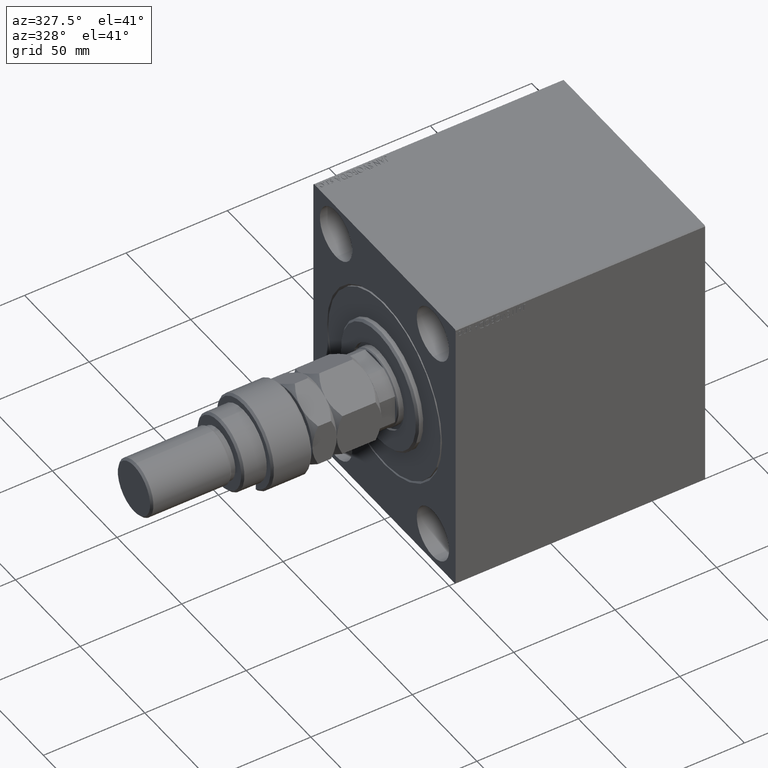
[diagram: clean part render]
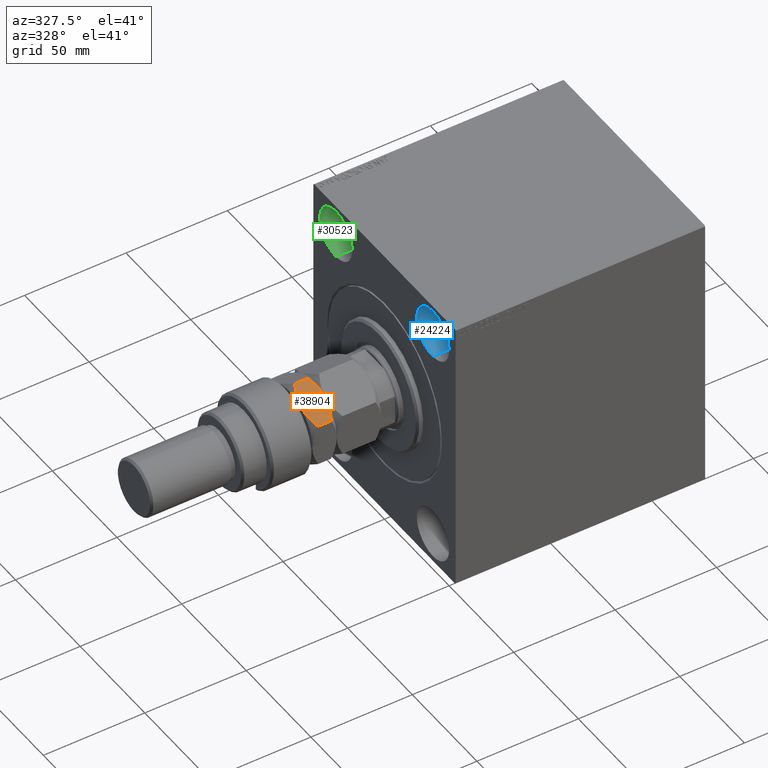
[diagram: same view with three faces highlighted in distinct colors, each labeled with its STEP entity id]
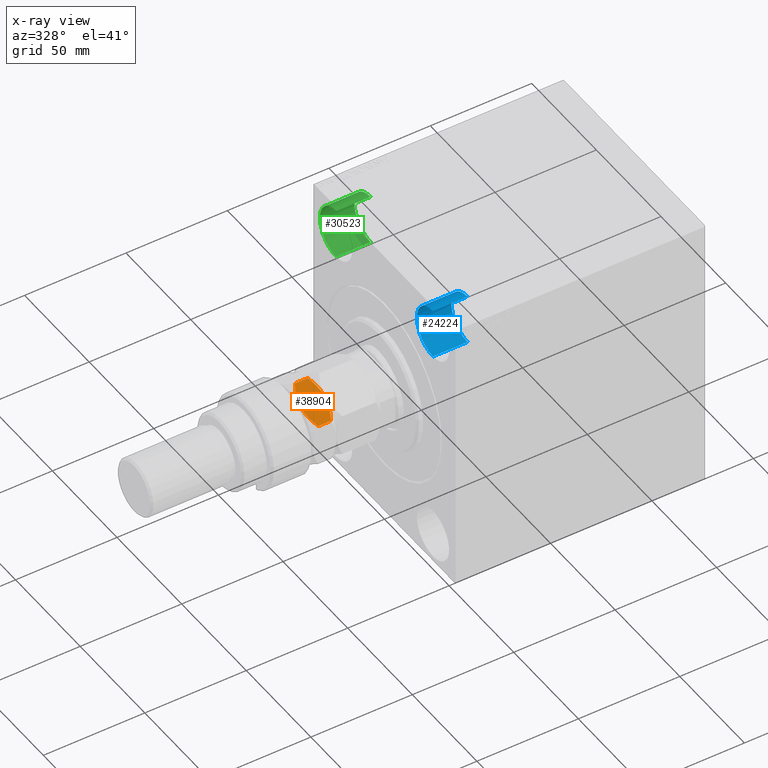
[diagram: x-ray of the same camera — body ghosted, the three highlighted faces saturated]
A machine part, auxiliary view with three faces highlighted in distinct colors.
The next image is the same camera in x-ray (body ghosted, the three faces saturated) — at least one of them is partly hidden behind the body in this view.
Their STEP definitions:

[orange] entity #38904 — the highlighted planar face has unit normal (0, 0.5, -0.866).
#1590 = CARTESIAN_POINT ( 'NONE',  ( 17.99999999999999289, 2.270651277618684016, 33.86270347186977858 ) ) ;
#1961 = VERTEX_POINT ( 'NONE', #19927 ) ;
#2002 = EDGE_CURVE ( 'NONE', #33866, #46672, #40989, .T. ) ;
#2905 = CARTESIAN_POINT ( 'NONE',  ( 17.99999999999999645, 10.39230484541326227, 24.78460969082651744 ) ) ;
#3172 = LINE ( 'NONE', #3637, #3808 ) ;
#3458 = CARTESIAN_POINT ( 'NONE',  ( 17.99999999999999289, -0.9151601729140479424, 22.01758616288185877 ) ) ;
#3637 = CARTESIAN_POINT ( 'NONE',  ( 17.99999999999999645, 10.39230484541326227, 34.00000000000000000 ) ) ;
#3808 = VECTOR ( 'NONE', #14481, 1000.000000000000000 ) ;
#5125 = CARTESIAN_POINT ( 'NONE',  ( 17.99999999999999645, 7.072062784455392936, 32.67602753198517718 ) ) ;
#5305 = B_SPLINE_CURVE_WITH_KNOTS ( 'NONE', 3,
 ( #8961, #41057, #8027, #23134, #40822, #16039, #26899, #26200, #41292, #29502 ),
 .UNSPECIFIED., .F., .F.,
 ( 4, 2, 2, 2, 4 ),
 ( 0.02697565077241457707, 0.02968594935678132291, 0.03104109864896469756, 0.03239624794114807221, 0.03781684510988156389 ),
 .UNSPECIFIED. ) ;
#6098 = ORIENTED_EDGE ( 'NONE', *, *, #11857, .F. ) ;
#6532 = CARTESIAN_POINT ( 'NONE',  ( 18.00000000000000000, -3.608119317998971898, 22.33688080105256901 ) ) ;
#6690 = CARTESIAN_POINT ( 'NONE',  ( 17.99999999999999645, -10.39230484541326227, 34.00000000000000000 ) ) ;
#6988 = CARTESIAN_POINT ( 'NONE',  ( 17.99999999999999289, -6.217733449719363925, 23.02554059171701439 ) ) ;
#7719 = CARTESIAN_POINT ( 'NONE',  ( 17.99999999999999645, 0.9151601729140473873, 33.98241383711814478 ) ) ;
#8027 = CARTESIAN_POINT ( 'NONE',  ( 17.99999999999999645, -8.764564343909466260, 31.99445466684792905 ) ) ;
#8193 = CARTESIAN_POINT ( 'NONE',  ( 17.99999999999999645, 10.39230484541326227, 31.21539030917348612 ) ) ;
#8961 = CARTESIAN_POINT ( 'NONE',  ( 17.99999999999999645, -10.39230484541326227, 31.21539030917348612 ) ) ;
#10195 = CARTESIAN_POINT ( 'NONE',  ( 17.99999999999999645, 7.499647523188061271, 23.49604516194576576 ) ) ;
#10618 = CARTESIAN_POINT ( 'NONE',  ( 17.99999999999999645, 10.39230484541326227, 31.21539030917348612 ) ) ;
#10757 = CARTESIAN_POINT ( 'NONE',  ( 17.99999999999999645, -2.270651277618684460, 22.13729652813022142 ) ) ;
#11245 = AXIS2_PLACEMENT_3D ( 'NONE', #34924, #26707, #27176 ) ;
#11857 = EDGE_CURVE ( 'NONE', #30114, #21707, #21977, .T. ) ;
#11967 = CARTESIAN_POINT ( 'NONE',  ( 17.99999999999999645, 1.821330908532694748, 33.91373064246911184 ) ) ;
#12420 = ORIENTED_EDGE ( 'NONE', *, *, #45102, .F. ) ;
#13744 = CARTESIAN_POINT ( 'NONE',  ( 17.99999999999999289, 1.827245545920531233, 22.00000000000000000 ) ) ;
#14481 = DIRECTION ( 'NONE',  ( -0.000000000000000000, -0.000000000000000000, -1.000000000000000000 ) ) ;
#15270 = CARTESIAN_POINT ( 'NONE',  ( 17.99999999999999645, 3.608119317998972342, 33.66311919894744165 ) ) ;
#15666 = VERTEX_POINT ( 'NONE', #43288 ) ;
#15723 = CARTESIAN_POINT ( 'NONE',  ( 17.99999999999999645, 0.000000000000000000, 22.00000000000000000 ) ) ;
#16039 = CARTESIAN_POINT ( 'NONE',  ( 17.99999999999999645, -6.210685278230689832, 32.96294020522648083 ) ) ;
#16870 = EDGE_CURVE ( 'NONE', #46672, #15666, #24512, .T. ) ;
#17296 = CARTESIAN_POINT ( 'NONE',  ( 18.00000000000000000, 6.210685278230689832, 23.03705979477352628 ) ) ;
#19927 = CARTESIAN_POINT ( 'NONE',  ( 17.99999999999999645, -10.39230484541326227, 31.21539030917348612 ) ) ;
#20618 = CARTESIAN_POINT ( 'NONE',  ( 18.00000000000000355, 9.586360653924579367, 24.38163759508217154 ) ) ;
#20706 = CARTESIAN_POINT ( 'NONE',  ( 18.00000000000000355, -8.761885744235328843, 24.00431157806612958 ) ) ;
#20759 = CARTESIAN_POINT ( 'NONE',  ( 17.99999999999999645, 10.39230484541326227, 24.78460969082651744 ) ) ;
#20942 = CARTESIAN_POINT ( 'NONE',  ( 17.99999999999999645, -10.39230484541326227, 24.78460969082651744 ) ) ;
#21707 = VERTEX_POINT ( 'NONE', #10618 ) ;
#21977 = B_SPLINE_CURVE_WITH_KNOTS ( 'NONE', 3,
 ( #33899, #40517, #7719, #11967, #1590, #15270, #40276, #33670, #5125, #44056, #22837, #8193 ),
 .UNSPECIFIED., .F., .F.,
 ( 4, 2, 2, 2, 2, 4 ),
 ( 0.03781684510988156389, 0.03916945699963351318, 0.04052206888938545554, 0.04322729266888934718, 0.04593251644839323189, 0.04863774022789712353 ),
 .UNSPECIFIED. ) ;
#22837 = CARTESIAN_POINT ( 'NONE',  ( 18.00000000000000000, 9.586151772083033151, 31.61846684583860423 ) ) ;
#23134 = CARTESIAN_POINT ( 'NONE',  ( 17.99999999999999289, -7.499647523188055942, 32.50395483805424846 ) ) ;
#23593 = ORIENTED_EDGE ( 'NONE', *, *, #2002, .F. ) ;
#23922 = CARTESIAN_POINT ( 'NONE',  ( 18.00000000000000000, 3.604369495180869798, 22.28146385227300641 ) ) ;
#24512 = B_SPLINE_CURVE_WITH_KNOTS ( 'NONE', 3,
 ( #43086, #35309, #3458, #28706, #10757, #6532, #46420, #6988, #31766, #20706, #28001, #20942 ),
 .UNSPECIFIED., .F., .F.,
 ( 4, 2, 2, 2, 2, 4 ),
 ( 0.03781684510988157083, 0.03916945699963351318, 0.04052206888938546248, 0.04322729266888934718, 0.04593251644839323189, 0.04863774022789712353 ),
 .UNSPECIFIED. ) ;
#26200 = CARTESIAN_POINT ( 'NONE',  ( 17.99999999999999645, -3.604369495180868466, 33.71853614772700070 ) ) ;
#26707 = DIRECTION ( 'NONE',  ( -1.000000000000000000, 0.000000000000000000, 0.000000000000000000 ) ) ;
#26899 = CARTESIAN_POINT ( 'NONE',  ( 17.99999999999999645, -5.778259303098551847, 33.09987941456177651 ) ) ;
#27176 = DIRECTION ( 'NONE',  ( 0.000000000000000000, 0.000000000000000000, 1.000000000000000000 ) ) ;
#27631 = PLANE ( 'NONE',  #11245 ) ;
#27895 = VECTOR ( 'NONE', #39243, 1000.000000000000000 ) ;
#28001 = CARTESIAN_POINT ( 'NONE',  ( 18.00000000000000000, -9.586151772083033151, 24.38153315416141353 ) ) ;
#28706 = CARTESIAN_POINT ( 'NONE',  ( 18.00000000000000000, -1.821330908532695414, 22.08626935753087750 ) ) ;
#29502 = CARTESIAN_POINT ( 'NONE',  ( 17.99999999999999645, 0.000000000000000000, 34.00000000000000000 ) ) ;
#30114 = VERTEX_POINT ( 'NONE', #45585 ) ;
#30195 = EDGE_CURVE ( 'NONE', #1961, #30114, #5305, .T. ) ;
#31766 = CARTESIAN_POINT ( 'NONE',  ( 17.99999999999999289, -7.072062784455384055, 23.32397246801482282 ) ) ;
#33670 = CARTESIAN_POINT ( 'NONE',  ( 17.99999999999999645, 6.217733449719369254, 32.97445940828297495 ) ) ;
#33866 = VERTEX_POINT ( 'NONE', #20759 ) ;
#33899 = CARTESIAN_POINT ( 'NONE',  ( 17.99999999999999645, 0.000000000000000000, 34.00000000000000000 ) ) ;
#34751 = CARTESIAN_POINT ( 'NONE',  ( 17.99999999999999645, 0.000000000000000000, 22.00000000000000000 ) ) ;
#34924 = CARTESIAN_POINT ( 'NONE',  ( 17.99999999999999645, -10.39230484541326227, 34.00000000000000000 ) ) ;
#35309 = CARTESIAN_POINT ( 'NONE',  ( 17.99999999999999645, -0.4559560457959390689, 21.99999999999999645 ) ) ;
#35700 = LINE ( 'NONE', #6690, #27895 ) ;
#35870 = EDGE_LOOP ( 'NONE', ( #23593, #12420, #6098, #44739, #45424, #42003 ) ) ;
#38904 = ADVANCED_FACE ( 'NONE', ( #45809 ), #27631, .F. ) ;
#39225 = CARTESIAN_POINT ( 'NONE',  ( 17.99999999999999645, 8.764564343909469812, 24.00554533315207095 ) ) ;
#39243 = DIRECTION ( 'NONE',  ( -0.000000000000000000, -0.000000000000000000, -1.000000000000000000 ) ) ;
#40276 = CARTESIAN_POINT ( 'NONE',  ( 17.99999999999999645, 4.485772026403929580, 33.46805093283005306 ) ) ;
#40517 = CARTESIAN_POINT ( 'NONE',  ( 18.00000000000000355, 0.4559560457959385138, 34.00000000000001421 ) ) ;
#40813 = EDGE_CURVE ( 'NONE', #1961, #15666, #35700, .T. ) ;
#40822 = CARTESIAN_POINT ( 'NONE',  ( 17.99999999999999645, -7.071263587154868802, 32.66506263978149605 ) ) ;
#40989 = B_SPLINE_CURVE_WITH_KNOTS ( 'NONE', 3,
 ( #2905, #20618, #39225, #10195, #42768, #17296, #45863, #23922, #13744, #34751 ),
 .UNSPECIFIED., .F., .F.,
 ( 4, 2, 2, 2, 4 ),
 ( 0.02697565077241458401, 0.02968594935678132984, 0.03104109864896470450, 0.03239624794114807915, 0.03781684510988157083 ),
 .UNSPECIFIED. ) ;
#41057 = CARTESIAN_POINT ( 'NONE',  ( 18.00000000000000000, -9.586360653924579367, 31.61836240491782490 ) ) ;
#41292 = CARTESIAN_POINT ( 'NONE',  ( 18.00000000000000000, -1.827245545920534120, 34.00000000000001421 ) ) ;
#42003 = ORIENTED_EDGE ( 'NONE', *, *, #16870, .F. ) ;
#42768 = CARTESIAN_POINT ( 'NONE',  ( 17.99999999999999645, 7.071263587154867913, 23.33493736021850751 ) ) ;
#43086 = CARTESIAN_POINT ( 'NONE',  ( 17.99999999999999645, 0.000000000000000000, 22.00000000000000000 ) ) ;
#43288 = CARTESIAN_POINT ( 'NONE',  ( 17.99999999999999645, -10.39230484541326227, 24.78460969082651744 ) ) ;
#44056 = CARTESIAN_POINT ( 'NONE',  ( 18.00000000000000355, 8.761885744235337725, 31.99568842193386331 ) ) ;
#44739 = ORIENTED_EDGE ( 'NONE', *, *, #30195, .F. ) ;
#45102 = EDGE_CURVE ( 'NONE', #21707, #33866, #3172, .T. ) ;
#45424 = ORIENTED_EDGE ( 'NONE', *, *, #40813, .T. ) ;
#45585 = CARTESIAN_POINT ( 'NONE',  ( 17.99999999999999645, 0.000000000000000000, 34.00000000000000000 ) ) ;
#45809 = FACE_OUTER_BOUND ( 'NONE', #35870, .T. ) ;
#45863 = CARTESIAN_POINT ( 'NONE',  ( 17.99999999999999645, 5.778259303098553623, 22.90012058543822349 ) ) ;
#46420 = CARTESIAN_POINT ( 'NONE',  ( 17.99999999999999645, -4.485772026403924251, 22.53194906716993984 ) ) ;
#46672 = VERTEX_POINT ( 'NONE', #15723 ) ;

[blue] entity #24224 — the highlighted cylindrical surface (edge-blend (fillet) strip) has radius 12.5 mm, axis along (-1, -0, -0).
#1233 = EDGE_CURVE ( 'NONE', #6152, #34958, #31102, .T. ) ;
#1944 = ORIENTED_EDGE ( 'NONE', *, *, #32387, .T. ) ;
#6152 = VERTEX_POINT ( 'NONE', #28043 ) ;
#7410 = DIRECTION ( 'NONE',  ( 0.000000000000000000, 0.000000000000000000, 1.000000000000000000 ) ) ;
#10559 = VERTEX_POINT ( 'NONE', #30333 ) ;
#10673 = CARTESIAN_POINT ( 'NONE',  ( 17.00000000000000000, -37.50000000000000711, 55.00000000000000711 ) ) ;
#11809 = CARTESIAN_POINT ( 'NONE',  ( 17.00000000000000000, -37.50000000000000711, 55.00000000000000711 ) ) ;
#11958 = AXIS2_PLACEMENT_3D ( 'NONE', #33579, #37127, #7410 ) ;
#13102 = LINE ( 'NONE', #42127, #24629 ) ;
#15024 = CIRCLE ( 'NONE', #25573, 12.49999999999999645 ) ;
#15346 = CYLINDRICAL_SURFACE ( 'NONE', #46382, 12.49999999999999645 ) ;
#16276 = DIRECTION ( 'NONE',  ( 0.000000000000000000, 0.000000000000000000, 1.000000000000000000 ) ) ;
#17897 = ORIENTED_EDGE ( 'NONE', *, *, #1233, .F. ) ;
#18295 = EDGE_CURVE ( 'NONE', #34849, #34958, #45889, .T. ) ;
#19558 = CARTESIAN_POINT ( 'NONE',  ( 0.000000000000000000, -37.50000000000000711, 42.50000000000000711 ) ) ;
#20665 = DIRECTION ( 'NONE',  ( -1.000000000000000000, -0.000000000000000000, -0.000000000000000000 ) ) ;
#23570 = DIRECTION ( 'NONE',  ( -1.000000000000000000, -0.000000000000000000, -0.000000000000000000 ) ) ;
#24031 = CARTESIAN_POINT ( 'NONE',  ( 17.00000000000000000, -37.50000000000000711, 42.50000000000000711 ) ) ;
#24224 = ADVANCED_FACE ( 'NONE', ( #25968 ), #15346, .F. ) ;
#24629 = VECTOR ( 'NONE', #20665, 1000.000000000000000 ) ;
#25078 = DIRECTION ( 'NONE',  ( -1.000000000000000000, 0.000000000000000000, 0.000000000000000000 ) ) ;
#25573 = AXIS2_PLACEMENT_3D ( 'NONE', #10673, #25078, #39462 ) ;
#25968 = FACE_OUTER_BOUND ( 'NONE', #27070, .T. ) ;
#27070 = EDGE_LOOP ( 'NONE', ( #17897, #36428, #1944, #29587 ) ) ;
#28043 = CARTESIAN_POINT ( 'NONE',  ( 17.00000000000000000, -37.50000000000000711, 42.50000000000000711 ) ) ;
#29587 = ORIENTED_EDGE ( 'NONE', *, *, #18295, .T. ) ;
#30157 = CARTESIAN_POINT ( 'NONE',  ( 0.000000000000000000, -37.50000000000000711, 67.50000000000000000 ) ) ;
#30333 = CARTESIAN_POINT ( 'NONE',  ( 17.00000000000000000, -37.50000000000000711, 67.50000000000000000 ) ) ;
#31102 = LINE ( 'NONE', #24031, #46163 ) ;
#32387 = EDGE_CURVE ( 'NONE', #10559, #34849, #13102, .T. ) ;
#33579 = CARTESIAN_POINT ( 'NONE',  ( 0.000000000000000000, -37.50000000000000711, 55.00000000000000711 ) ) ;
#34849 = VERTEX_POINT ( 'NONE', #30157 ) ;
#34958 = VERTEX_POINT ( 'NONE', #19558 ) ;
#36428 = ORIENTED_EDGE ( 'NONE', *, *, #38713, .F. ) ;
#37127 = DIRECTION ( 'NONE',  ( -1.000000000000000000, 0.000000000000000000, 0.000000000000000000 ) ) ;
#38713 = EDGE_CURVE ( 'NONE', #10559, #6152, #15024, .T. ) ;
#39462 = DIRECTION ( 'NONE',  ( 0.000000000000000000, 0.000000000000000000, 1.000000000000000000 ) ) ;
#42127 = CARTESIAN_POINT ( 'NONE',  ( 17.00000000000000000, -37.50000000000000711, 67.50000000000000000 ) ) ;
#44381 = DIRECTION ( 'NONE',  ( -1.000000000000000000, -0.000000000000000000, -0.000000000000000000 ) ) ;
#45889 = CIRCLE ( 'NONE', #11958, 12.49999999999999645 ) ;
#46163 = VECTOR ( 'NONE', #23570, 1000.000000000000000 ) ;
#46382 = AXIS2_PLACEMENT_3D ( 'NONE', #11809, #44381, #16276 ) ;

[green] entity #30523 — the highlighted cylindrical surface (edge-blend (fillet) strip) has radius 12.5 mm, axis along (-1, -0, -0).
#1827 = EDGE_LOOP ( 'NONE', ( #46547, #20519, #30108, #40902 ) ) ;
#1920 = VERTEX_POINT ( 'NONE', #1981 ) ;
#1981 = CARTESIAN_POINT ( 'NONE',  ( 17.00000000000000000, 37.50000000000000711, 42.50000000000000711 ) ) ;
#2269 = DIRECTION ( 'NONE',  ( -1.000000000000000000, -0.000000000000000000, -0.000000000000000000 ) ) ;
#3136 = VERTEX_POINT ( 'NONE', #17218 ) ;
#3583 = AXIS2_PLACEMENT_3D ( 'NONE', #9591, #31077, #9135 ) ;
#5809 = CARTESIAN_POINT ( 'NONE',  ( 17.00000000000000000, 37.50000000000000711, 55.00000000000000711 ) ) ;
#9135 = DIRECTION ( 'NONE',  ( 0.000000000000000000, 0.000000000000000000, 1.000000000000000000 ) ) ;
#9333 = FACE_OUTER_BOUND ( 'NONE', #1827, .T. ) ;
#9591 = CARTESIAN_POINT ( 'NONE',  ( 0.000000000000000000, 37.50000000000000711, 55.00000000000000711 ) ) ;
#15535 = AXIS2_PLACEMENT_3D ( 'NONE', #5809, #2269, #24434 ) ;
#17218 = CARTESIAN_POINT ( 'NONE',  ( 17.00000000000000000, 37.50000000000000711, 67.50000000000000000 ) ) ;
#19903 = LINE ( 'NONE', #33336, #29445 ) ;
#20519 = ORIENTED_EDGE ( 'NONE', *, *, #40428, .F. ) ;
#22764 = EDGE_CURVE ( 'NONE', #1920, #27721, #32635, .T. ) ;
#24434 = DIRECTION ( 'NONE',  ( 0.000000000000000000, 0.000000000000000000, 1.000000000000000000 ) ) ;
#24626 = CARTESIAN_POINT ( 'NONE',  ( 17.00000000000000000, 37.50000000000000711, 42.50000000000000711 ) ) ;
#25559 = DIRECTION ( 'NONE',  ( -1.000000000000000000, -0.000000000000000000, -0.000000000000000000 ) ) ;
#27721 = VERTEX_POINT ( 'NONE', #38703 ) ;
#28342 = VERTEX_POINT ( 'NONE', #37085 ) ;
#29445 = VECTOR ( 'NONE', #34268, 1000.000000000000000 ) ;
#30108 = ORIENTED_EDGE ( 'NONE', *, *, #42138, .T. ) ;
#30367 = DIRECTION ( 'NONE',  ( -1.000000000000000000, 0.000000000000000000, 0.000000000000000000 ) ) ;
#30523 = ADVANCED_FACE ( 'NONE', ( #9333 ), #35277, .F. ) ;
#31077 = DIRECTION ( 'NONE',  ( -1.000000000000000000, 0.000000000000000000, 0.000000000000000000 ) ) ;
#32403 = CIRCLE ( 'NONE', #39949, 12.49999999999999645 ) ;
#32635 = LINE ( 'NONE', #24626, #43580 ) ;
#33336 = CARTESIAN_POINT ( 'NONE',  ( 17.00000000000000000, 37.50000000000000711, 67.50000000000000000 ) ) ;
#34123 = EDGE_CURVE ( 'NONE', #28342, #27721, #35973, .T. ) ;
#34268 = DIRECTION ( 'NONE',  ( -1.000000000000000000, -0.000000000000000000, -0.000000000000000000 ) ) ;
#35277 = CYLINDRICAL_SURFACE ( 'NONE', #15535, 12.49999999999999645 ) ;
#35973 = CIRCLE ( 'NONE', #3583, 12.49999999999999645 ) ;
#37085 = CARTESIAN_POINT ( 'NONE',  ( 0.000000000000000000, 37.50000000000000711, 67.50000000000000000 ) ) ;
#37674 = CARTESIAN_POINT ( 'NONE',  ( 17.00000000000000000, 37.50000000000000711, 55.00000000000000711 ) ) ;
#38365 = DIRECTION ( 'NONE',  ( 0.000000000000000000, 0.000000000000000000, 1.000000000000000000 ) ) ;
#38703 = CARTESIAN_POINT ( 'NONE',  ( 0.000000000000000000, 37.50000000000000711, 42.50000000000000711 ) ) ;
#39949 = AXIS2_PLACEMENT_3D ( 'NONE', #37674, #30367, #38365 ) ;
#40428 = EDGE_CURVE ( 'NONE', #3136, #1920, #32403, .T. ) ;
#40902 = ORIENTED_EDGE ( 'NONE', *, *, #34123, .T. ) ;
#42138 = EDGE_CURVE ( 'NONE', #3136, #28342, #19903, .T. ) ;
#43580 = VECTOR ( 'NONE', #25559, 1000.000000000000000 ) ;
#46547 = ORIENTED_EDGE ( 'NONE', *, *, #22764, .F. ) ;